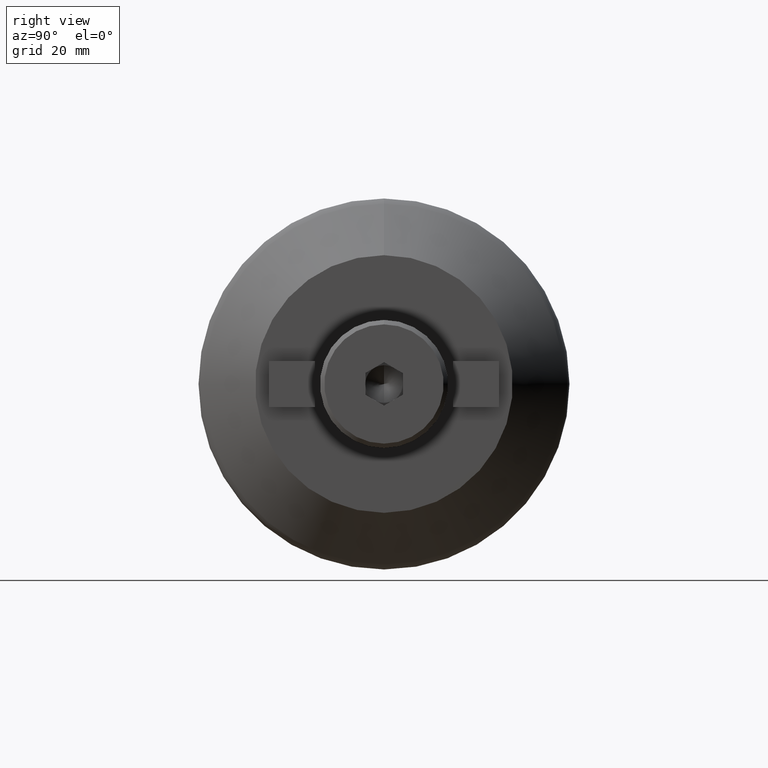
[diagram: clean part render]
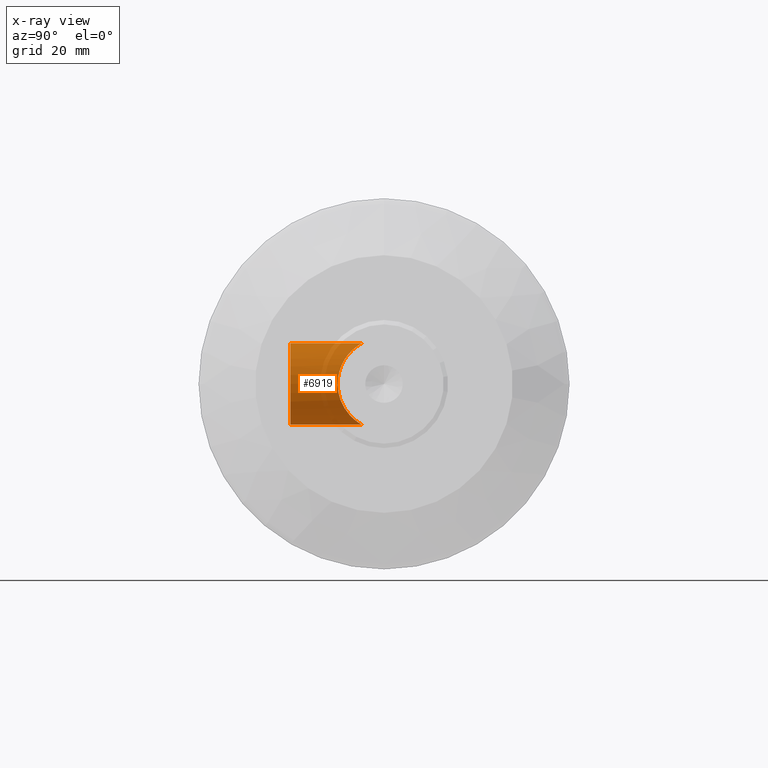
[diagram: x-ray — body ghosted, one internal face saturated and labeled with its STEP entity id]
A machine part, right view, then the same camera in x-ray: the body is ghosted and one INTERNAL B-rep face — a face not visible from any outside direction — is saturated and labeled: STEP entity #6919.
In plain terms, the highlighted cylindrical surface (partial cylindrical patch) has radius 7 mm, axis along (0, 1, 0).
Its self-contained STEP definition (entity closure, byte-faithful):
#92 = VERTEX_POINT ( 'NONE', #6515 ) ;
#195 = CARTESIAN_POINT ( 'NONE',  ( 30.99999999999996800, -3.872983346207528500, 7.000000000000008000 ) ) ;
#354 = CARTESIAN_POINT ( 'NONE',  ( 31.00000000000000000, -3.872983346207416600, -7.000000000000000000 ) ) ;
#398 = CARTESIAN_POINT ( 'NONE',  ( 37.73229132411766100, -7.766746700706387500, 1.932364216009905300 ) ) ;
#416 = CARTESIAN_POINT ( 'NONE',  ( 37.49349904537487500, -7.560630500432981900, -2.624662021152105700 ) ) ;
#650 = CARTESIAN_POINT ( 'NONE',  ( 31.00000000000000000, -16.15000000000000200, 0.0000000000000000000 ) ) ;
#702 = CARTESIAN_POINT ( 'NONE',  ( 31.00000000000000000, -32.00000000000000000, -7.000000000000000000 ) ) ;
#851 = VERTEX_POINT ( 'NONE', #4574 ) ;
#917 = CARTESIAN_POINT ( 'NONE',  ( 35.05604546306437200, -5.606767190425721900, 5.709096391447090500 ) ) ;
#934 = CARTESIAN_POINT ( 'NONE',  ( 37.94533967099822300, -7.952056936992422100, -0.9989638608996405100 ) ) ;
#960 = CARTESIAN_POINT ( 'NONE',  ( 35.55820000335405200, -5.980386702605169800, -5.316827314838436200 ) ) ;
#984 = CARTESIAN_POINT ( 'NONE',  ( 36.97453033773494000, -7.119784853606717900, -3.654769069399922600 ) ) ;
#1003 = CARTESIAN_POINT ( 'NONE',  ( 37.79598356993129500, -7.822069272577862400, 1.695330024425943700 ) ) ;
#1558 = CARTESIAN_POINT ( 'NONE',  ( 37.72816670773598700, -7.763170223860403700, -1.946708591556202400 ) ) ;
#1582 = CARTESIAN_POINT ( 'NONE',  ( 35.72415446489971900, -6.108056706286497200, 5.170014478738901100 ) ) ;
#1756 = DIRECTION ( 'NONE',  ( -1.000000000000000000, 0.0000000000000000000, 0.0000000000000000000 ) ) ;
#1798 = VERTEX_POINT ( 'NONE', #6581 ) ;
#2116 = CARTESIAN_POINT ( 'NONE',  ( 34.14292522005499800, -4.977010234343017800, -6.269956170842674800 ) ) ;
#2144 = CARTESIAN_POINT ( 'NONE',  ( 31.24658527877540900, -3.872983346207417900, -7.000000000000000000 ) ) ;
#2163 = CARTESIAN_POINT ( 'NONE',  ( 36.98527096207327200, -7.127611959860368000, 3.657263872402678900 ) ) ;
#2190 = CARTESIAN_POINT ( 'NONE',  ( 31.49344800614485600, -3.896853369577717400, -6.986939365355582700 ) ) ;
#2482 = CARTESIAN_POINT ( 'NONE',  ( 31.00000000000000000, -16.15000000000000200, 0.0000000000000000000 ) ) ;
#2523 = CIRCLE ( 'NONE', #5839, 6.999999999999999100 ) ;
#2604 = DIRECTION ( 'NONE',  ( -0.0000000000000000000, 1.000000000000000000, -0.0000000000000000000 ) ) ;
#2673 = CARTESIAN_POINT ( 'NONE',  ( 31.98208525019007100, -3.988469878905470400, 6.935044079988335500 ) ) ;
#2748 = CARTESIAN_POINT ( 'NONE',  ( 37.30442100711385900, -7.398873424159357400, -3.051009069574210900 ) ) ;
#2773 = CARTESIAN_POINT ( 'NONE',  ( 36.18895365440350500, -6.472103622738525400, 4.718209453474930400 ) ) ;
#2802 = DIRECTION ( 'NONE',  ( -0.0000000000000000000, 1.000000000000000000, -0.0000000000000000000 ) ) ;
#2840 = CYLINDRICAL_SURFACE ( 'NONE', #6854, 7.000000000000000000 ) ;
#2930 = CARTESIAN_POINT ( 'NONE',  ( 31.00000000000000000, -3.872983346207416600, -7.000000000000000000 ) ) ;
#2964 = ORIENTED_EDGE ( 'NONE', *, *, #7435, .F. ) ;
#2971 = ORIENTED_EDGE ( 'NONE', *, *, #4916, .F. ) ;
#3052 = DIRECTION ( 'NONE',  ( -0.0000000000000000000, 1.000000000000000000, -0.0000000000000000000 ) ) ;
#3098 = DIRECTION ( 'NONE',  ( -1.000000000000000000, 0.0000000000000000000, 0.0000000000000000000 ) ) ;
#3178 = VECTOR ( 'NONE', #3052, 1000.000000000000000 ) ;
#3282 = CARTESIAN_POINT ( 'NONE',  ( 32.22197258244368400, -4.055457364967509200, 6.896534306439676200 ) ) ;
#3299 = CARTESIAN_POINT ( 'NONE',  ( 30.99999999999996800, -3.872983346207528500, 7.000000000000008000 ) ) ;
#3328 = CARTESIAN_POINT ( 'NONE',  ( 35.05113037297468300, -5.603198860898243300, -5.712612966352326200 ) ) ;
#3346 = CARTESIAN_POINT ( 'NONE',  ( 37.21564683171183700, -7.322888826826134500, 3.253468837334246600 ) ) ;
#3375 = CARTESIAN_POINT ( 'NONE',  ( 37.20044115331085500, -7.310389463004230300, -3.256820414374542900 ) ) ;
#3430 = EDGE_LOOP ( 'NONE', ( #6219, #6459, #2971, #7313, #2964 ) ) ;
#3849 = CIRCLE ( 'NONE', #4324, 6.999999999999999100 ) ;
#3872 = CARTESIAN_POINT ( 'NONE',  ( 36.85186988368991500, -7.017061381128074000, -3.847834655708974000 ) ) ;
#3897 = CARTESIAN_POINT ( 'NONE',  ( 32.68248491468402500, -4.217140374111870900, 6.798871005101081400 ) ) ;
#3927 = CARTESIAN_POINT ( 'NONE',  ( 33.33407694553606100, -4.517999929900990500, 6.603256513101735300 ) ) ;
#3949 = CARTESIAN_POINT ( 'NONE',  ( 37.93595280874888700, -7.944009374381281000, 0.9763053732221594900 ) ) ;
#3977 = CARTESIAN_POINT ( 'NONE',  ( 33.34009110998414400, -4.513167217921817600, -6.611679281401896100 ) ) ;
#3981 = CARTESIAN_POINT ( 'NONE',  ( 31.00000000000000000, -32.00000000000000000, 0.0000000000000000000 ) ) ;
#4324 = AXIS2_PLACEMENT_3D ( 'NONE', #2482, #6655, #3098 ) ;
#4440 = FACE_OUTER_BOUND ( 'NONE', #3430, .T. ) ;
#4481 = CARTESIAN_POINT ( 'NONE',  ( 35.56189041485235700, -5.983197743966760700, 5.313678933897056000 ) ) ;
#4510 = CARTESIAN_POINT ( 'NONE',  ( 34.52460634533350300, -5.230696321363154800, 6.062862008288835400 ) ) ;
#4531 = CARTESIAN_POINT ( 'NONE',  ( 31.98389862511828600, -3.988738115460895600, -6.934894096193118300 ) ) ;
#4551 = CARTESIAN_POINT ( 'NONE',  ( 35.22474145329822900, -5.730294773337260700, -5.585463241233665800 ) ) ;
#4574 = CARTESIAN_POINT ( 'NONE',  ( 31.00000000000000000, -16.15000000000000200, -6.999999999999999100 ) ) ;
#4575 = CARTESIAN_POINT ( 'NONE',  ( 35.22791842899261600, -5.732635112101803500, 5.583075651238110600 ) ) ;
#4713 = LINE ( 'NONE', #6727, #7614 ) ;
#4755 = LINE ( 'NONE', #702, #3178 ) ;
#4772 = B_SPLINE_CURVE_WITH_KNOTS ( 'NONE', 3,
 ( #354, #2144, #2190, #4531, #7552, #5708, #3977, #2116, #5678, #3328, #4551, #960, #5138, #6310, #5773, #3872, #984, #3375, #2748, #416, #5162, #1558, #5754, #934, #5114, #7503, #6852, #3949, #6929, #1003, #398, #6951, #7482, #3346, #2163, #6337, #2773, #1582, #4481, #4575, #917, #4510, #5184, #5726, #3927, #6288, #3897, #3282, #2673, #7453, #5085, #3299 ),
 .UNSPECIFIED., .F., .F.,
 ( 4, 2, 2, 2, 2, 2, 2, 2, 2, 2, 2, 2, 2, 2, 2, 2, 2, 2, 2, 2, 2, 2, 2, 2, 2, 4 ),
 ( 0.02371444517806535800, 0.02445537776351821100, 0.02519631034897106000, 0.02667817551987674400, 0.02816004069078242500, 0.02890097327623527400, 0.02964190586168812300, 0.03112377103259380800, 0.03186470361804665000, 0.03260563620349948800, 0.03334656878895233400, 0.03408750137440517300, 0.03556936654531086400, 0.03631029913076371000, 0.03705123171621654800, 0.03779216430166939400, 0.03853309688712224000, 0.04001496205802793100, 0.04149682722893362200, 0.04223775981438646100, 0.04297869239983931300, 0.04446055757074499800, 0.04520149015619782900, 0.04594242274165066800, 0.04668335532710350700, 0.04742428791255633900 ),
 .UNSPECIFIED. ) ;
#4916 = EDGE_CURVE ( 'NONE', #1798, #92, #3849, .T. ) ;
#5085 = CARTESIAN_POINT ( 'NONE',  ( 31.25146071713894000, -3.872983346207416600, 7.000000000000001800 ) ) ;
#5114 = CARTESIAN_POINT ( 'NONE',  ( 37.99909577167555600, -7.999208800510261100, -0.5123487462078800700 ) ) ;
#5138 = CARTESIAN_POINT ( 'NONE',  ( 35.71847454003928800, -6.103671481951034900, -5.175140377973505700 ) ) ;
#5162 = CARTESIAN_POINT ( 'NONE',  ( 37.57860496173047700, -7.633913014964910800, -2.404133595501890800 ) ) ;
#5184 = CARTESIAN_POINT ( 'NONE',  ( 34.14993018485348100, -4.981293055620355400, 6.266666362729776700 ) ) ;
#5678 = CARTESIAN_POINT ( 'NONE',  ( 34.51748596085646200, -5.225842342489480400, -6.067100569784244600 ) ) ;
#5708 = CARTESIAN_POINT ( 'NONE',  ( 32.90674265711471200, -4.295542750490961100, -6.751551159515621200 ) ) ;
#5726 = CARTESIAN_POINT ( 'NONE',  ( 33.54349769101454400, -4.630570762695073000, 6.525251823769616900 ) ) ;
#5754 = CARTESIAN_POINT ( 'NONE',  ( 37.79205067545958500, -7.818651992122293700, -1.710837691664609300 ) ) ;
#5773 = CARTESIAN_POINT ( 'NONE',  ( 36.46474940583734500, -6.696459006977322700, -4.397427045972284200 ) ) ;
#5839 = AXIS2_PLACEMENT_3D ( 'NONE', #650, #6642, #1756 ) ;
#6125 = EDGE_CURVE ( 'NONE', #92, #851, #2523, .T. ) ;
#6165 = EDGE_CURVE ( 'NONE', #851, #7548, #4755, .T. ) ;
#6219 = ORIENTED_EDGE ( 'NONE', *, *, #6165, .F. ) ;
#6288 = CARTESIAN_POINT ( 'NONE',  ( 32.90397789961814800, -4.311558885268374800, 6.739864978118563800 ) ) ;
#6310 = CARTESIAN_POINT ( 'NONE',  ( 36.18083118557845500, -6.465618769444688500, -4.726870835284263000 ) ) ;
#6337 = CARTESIAN_POINT ( 'NONE',  ( 36.47253317889357000, -6.702835456357114200, 4.387530983107506400 ) ) ;
#6354 = EDGE_CURVE ( 'NONE', #1798, #6668, #4713, .T. ) ;
#6459 = ORIENTED_EDGE ( 'NONE', *, *, #6125, .F. ) ;
#6515 = CARTESIAN_POINT ( 'NONE',  ( 38.00000000000000000, -16.15000000000000200, -9.235435494293961700E-016 ) ) ;
#6581 = CARTESIAN_POINT ( 'NONE',  ( 31.00000000000000000, -16.15000000000000200, 6.999999999999999100 ) ) ;
#6642 = DIRECTION ( 'NONE',  ( 1.432360404464315800E-016, 1.000000000000000000, -0.0000000000000000000 ) ) ;
#6655 = DIRECTION ( 'NONE',  ( 1.432360404464315800E-016, 1.000000000000000000, -0.0000000000000000000 ) ) ;
#6668 = VERTEX_POINT ( 'NONE', #195 ) ;
#6727 = CARTESIAN_POINT ( 'NONE',  ( 31.00000000000000000, -32.00000000000000000, 7.000000000000000000 ) ) ;
#6852 = CARTESIAN_POINT ( 'NONE',  ( 37.98740506313429700, -7.988971967116976100, 0.4866045937506432400 ) ) ;
#6854 = AXIS2_PLACEMENT_3D ( 'NONE', #3981, #2802, #7020 ) ;
#6919 = ADVANCED_FACE ( 'NONE', ( #4440 ), #2840, .F. ) ;
#6929 = CARTESIAN_POINT ( 'NONE',  ( 37.89753479704344800, -7.910458981541834700, 1.218010795547823000 ) ) ;
#6951 = CARTESIAN_POINT ( 'NONE',  ( 37.58388019086375200, -7.638460984242298600, 2.389623310996375600 ) ) ;
#7020 = DIRECTION ( 'NONE',  ( 0.0000000000000000000, 0.0000000000000000000, 1.000000000000000000 ) ) ;
#7313 = ORIENTED_EDGE ( 'NONE', *, *, #6354, .T. ) ;
#7435 = EDGE_CURVE ( 'NONE', #7548, #6668, #4772, .T. ) ;
#7453 = CARTESIAN_POINT ( 'NONE',  ( 31.49766794097186900, -3.897572823664301900, 6.986533793702782300 ) ) ;
#7482 = CARTESIAN_POINT ( 'NONE',  ( 37.49914641197753400, -7.565481669576090700, 2.610733071131200200 ) ) ;
#7503 = CARTESIAN_POINT ( 'NONE',  ( 38.00043535509969700, -8.000380935567909200, 0.2374143082818742100 ) ) ;
#7548 = VERTEX_POINT ( 'NONE', #2930 ) ;
#7552 = CARTESIAN_POINT ( 'NONE',  ( 32.21980696999854400, -4.054865476716297900, -6.896872378908235600 ) ) ;
#7614 = VECTOR ( 'NONE', #2604, 1000.000000000000000 ) ;